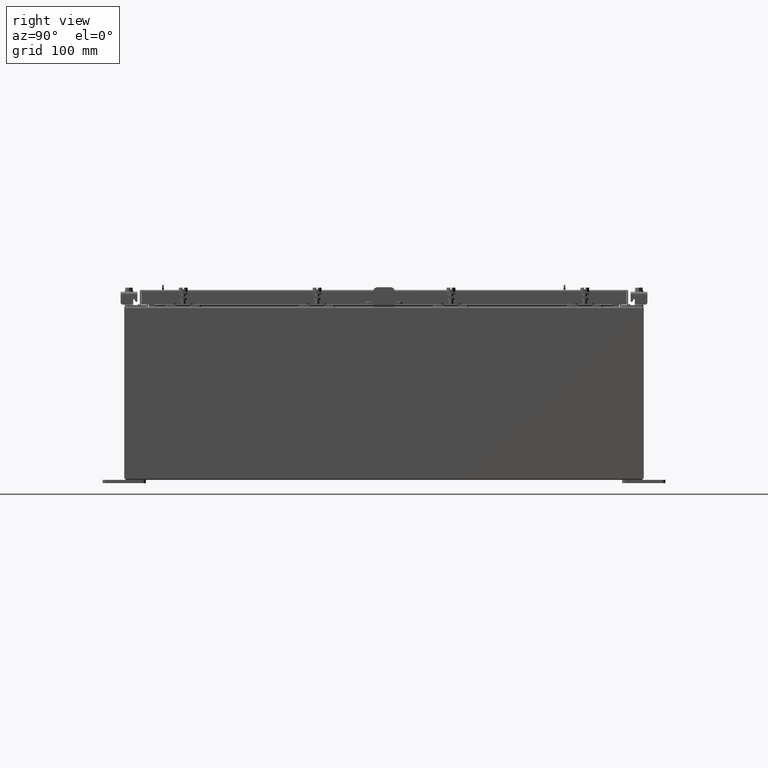
[diagram: clean part render]
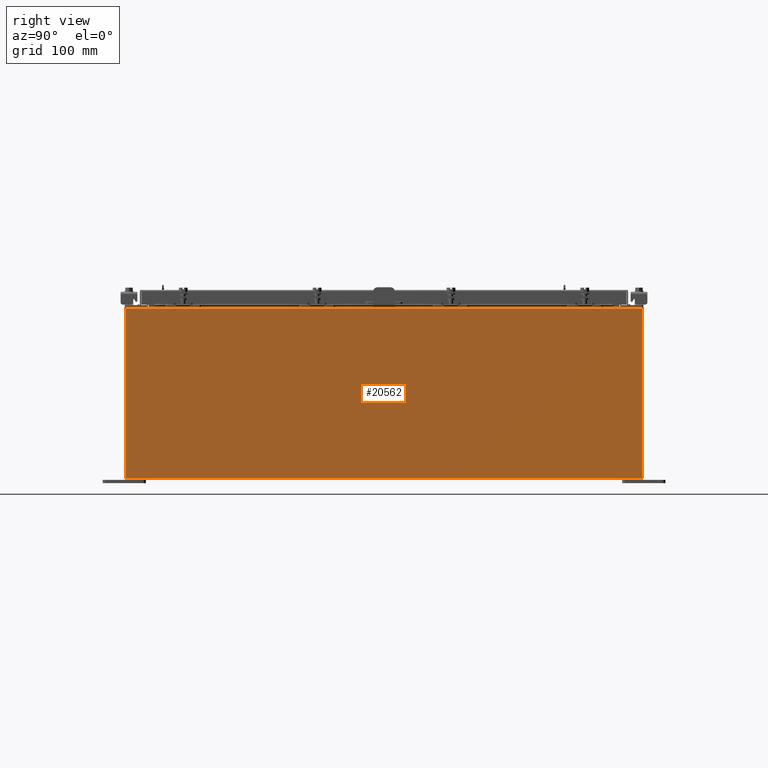
[diagram: same view with one face highlighted and labeled with its STEP entity id]
A machine part, right view. The second image highlights one B-rep face of the part: STEP entity #20562.
In plain terms, the highlighted planar face has unit normal (-1, 0, 0).
Its self-contained STEP definition (entity closure, byte-faithful):
#977 = EDGE_CURVE ( 'NONE', #8925, #11261, #13028, .T. ) ;
#1769 = EDGE_LOOP ( 'NONE', ( #7226, #7801, #16516, #13752 ) ) ;
#2865 = VECTOR ( 'NONE', #6731, 39.37007874015748100 ) ;
#3003 = VERTEX_POINT ( 'NONE', #17678 ) ;
#4324 = LINE ( 'NONE', #9370, #13266 ) ;
#4675 = CARTESIAN_POINT ( 'NONE',  ( 11.99999999999999600, 0.0000000000000000000, -4.253780798634221600E-014 ) ) ;
#5079 = EDGE_CURVE ( 'NONE', #3003, #20422, #7616, .T. ) ;
#6731 = DIRECTION ( 'NONE',  ( -0.0000000000000000000, -1.000000000000000000, -0.0000000000000000000 ) ) ;
#7190 = AXIS2_PLACEMENT_3D ( 'NONE', #4675, #8259, #20796 ) ;
#7226 = ORIENTED_EDGE ( 'NONE', *, *, #5079, .T. ) ;
#7403 = CARTESIAN_POINT ( 'NONE',  ( 11.99999999999999600, 14.92529999999999800, 0.01299999999999766100 ) ) ;
#7616 = LINE ( 'NONE', #19246, #2865 ) ;
#7801 = ORIENTED_EDGE ( 'NONE', *, *, #8301, .T. ) ;
#8259 = DIRECTION ( 'NONE',  ( -1.000000000000000000, 0.0000000000000000000, 3.523082860860887800E-015 ) ) ;
#8263 = VECTOR ( 'NONE', #17218, 39.37007874015748100 ) ;
#8301 = EDGE_CURVE ( 'NONE', #20422, #11261, #4324, .T. ) ;
#8539 = CARTESIAN_POINT ( 'NONE',  ( 11.99999999999999600, -14.92529999999999800, 0.01299999999999984700 ) ) ;
#8602 = DIRECTION ( 'NONE',  ( 3.523082860860888200E-015, -2.201926788038055100E-016, 1.000000000000000000 ) ) ;
#8925 = VERTEX_POINT ( 'NONE', #7403 ) ;
#9370 = CARTESIAN_POINT ( 'NONE',  ( 11.99999999999999600, -14.92530000000000000, -3.925136619739177700E-014 ) ) ;
#11164 = DIRECTION ( 'NONE',  ( -3.523082860860888200E-015, -2.201926788038054900E-016, -1.000000000000000000 ) ) ;
#11261 = VERTEX_POINT ( 'NONE', #20302 ) ;
#12367 = LINE ( 'NONE', #22935, #21325 ) ;
#13028 = LINE ( 'NONE', #8539, #8263 ) ;
#13198 = CARTESIAN_POINT ( 'NONE',  ( 12.00000000000003200, -14.92529999999999800, 9.837600000000001900 ) ) ;
#13266 = VECTOR ( 'NONE', #11164, 39.37007874015748100 ) ;
#13582 = PLANE ( 'NONE',  #7190 ) ;
#13752 = ORIENTED_EDGE ( 'NONE', *, *, #16456, .T. ) ;
#16456 = EDGE_CURVE ( 'NONE', #8925, #3003, #12367, .T. ) ;
#16516 = ORIENTED_EDGE ( 'NONE', *, *, #977, .F. ) ;
#17218 = DIRECTION ( 'NONE',  ( 2.579385833438731400E-031, -1.000000000000000000, 7.321388497823869400E-017 ) ) ;
#17678 = CARTESIAN_POINT ( 'NONE',  ( 12.00000000000003200, 14.92529999999999800, 9.837599999999994800 ) ) ;
#18122 = FACE_OUTER_BOUND ( 'NONE', #1769, .T. ) ;
#19246 = CARTESIAN_POINT ( 'NONE',  ( 12.00000000000003200, 14.92529999999999800, 9.837599999999994800 ) ) ;
#20302 = CARTESIAN_POINT ( 'NONE',  ( 11.99999999999999600, -14.92530000000000000, 0.01299999999999997500 ) ) ;
#20422 = VERTEX_POINT ( 'NONE', #13198 ) ;
#20562 = ADVANCED_FACE ( 'NONE', ( #18122 ), #13582, .F. ) ;
#20796 = DIRECTION ( 'NONE',  ( 3.523082860860887800E-015, 0.0000000000000000000, 1.000000000000000000 ) ) ;
#21325 = VECTOR ( 'NONE', #8602, 39.37007874015748100 ) ;
#22935 = CARTESIAN_POINT ( 'NONE',  ( 11.99999999999999600, 14.92530000000000000, -3.925136619739177700E-014 ) ) ;